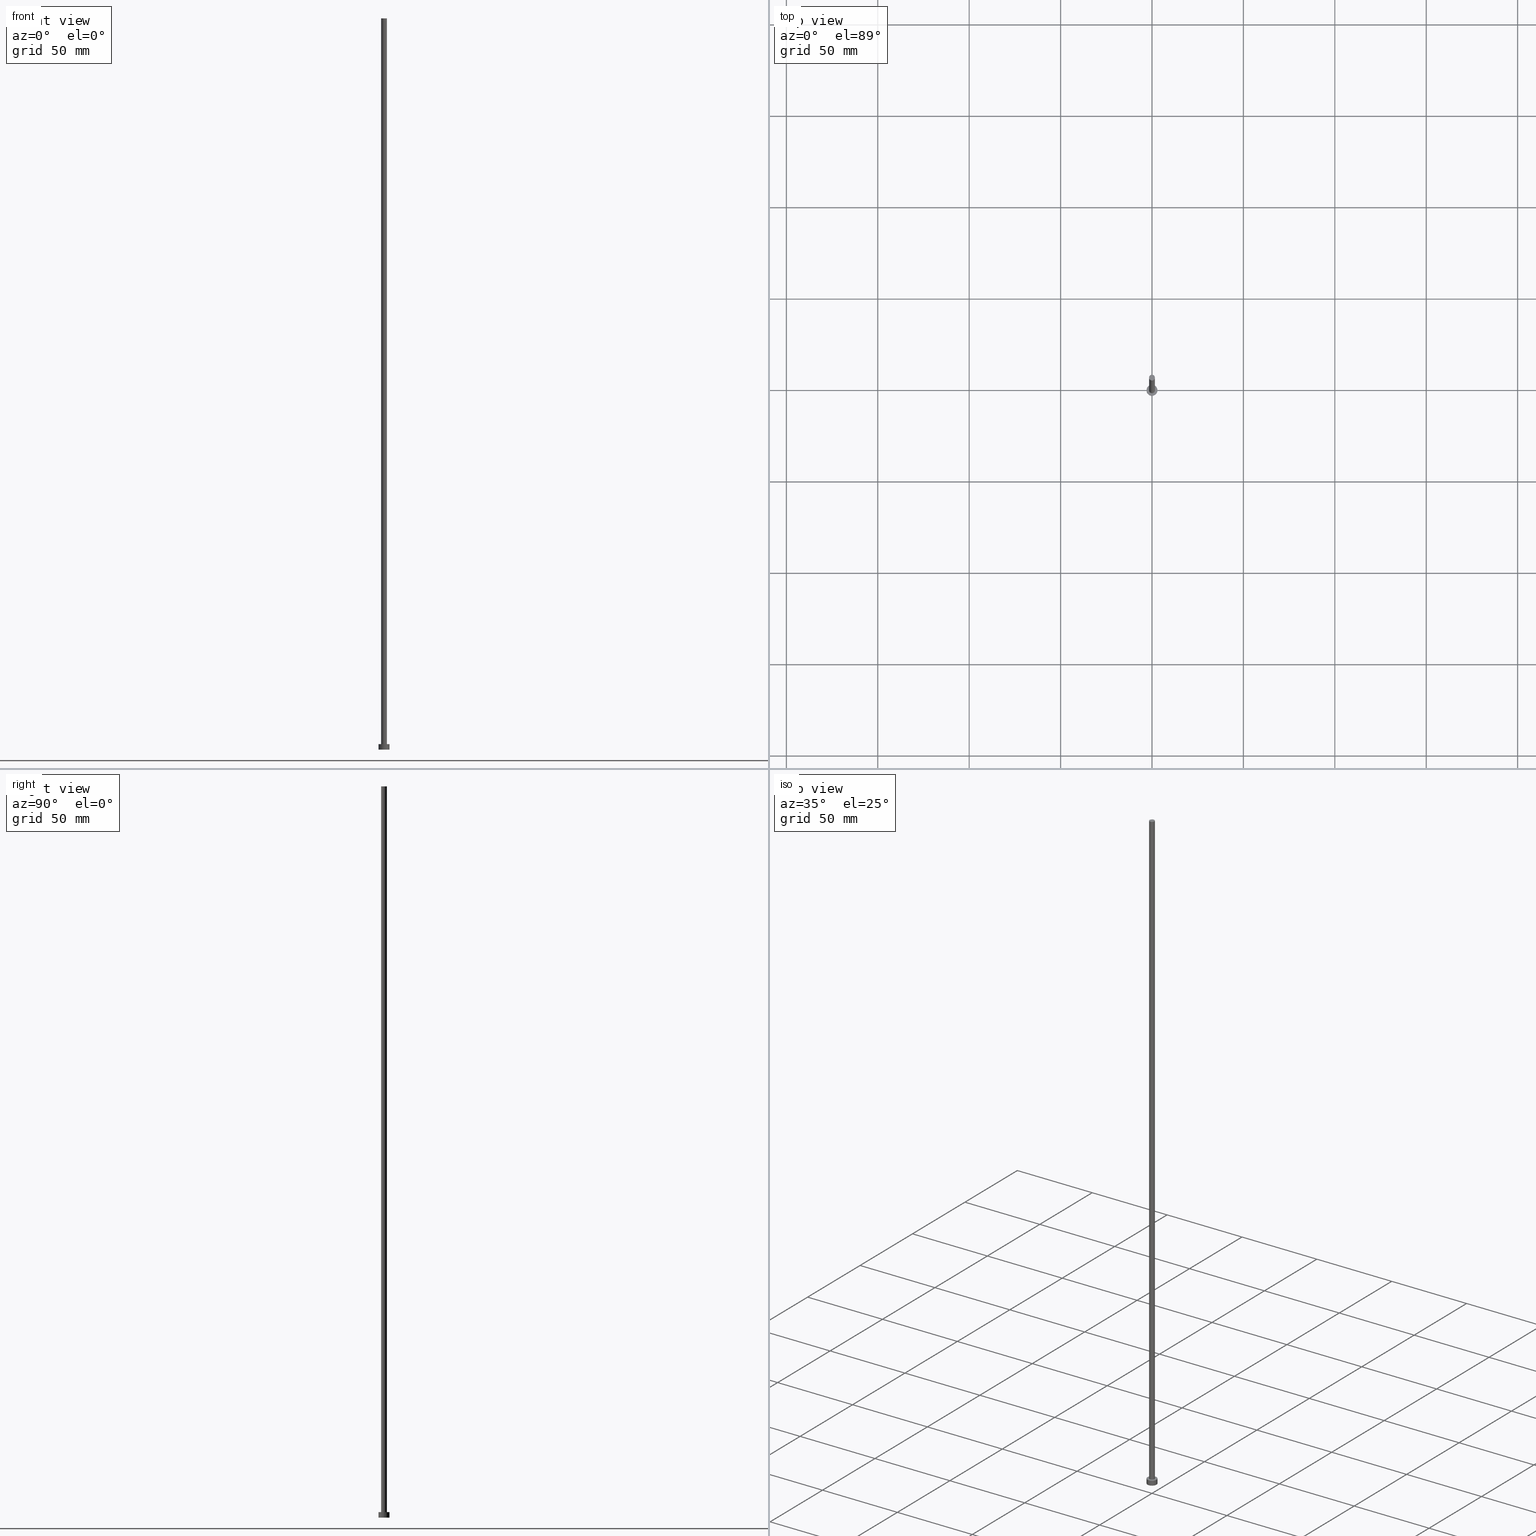
[diagram: canonical four-view strip — front | top / right | iso, engineering-drawing reading convention]
A machine part, canonical four-view strip (front | top / right | iso — engineering-drawing reading convention). The complete STEP part file that produces these views, byte-faithful:
ISO-10303-21;
HEADER;
FILE_DESCRIPTION (( 'STEP AP203' ),
    '1' );
FILE_NAME ('68ab.STEP',
    '2023-02-13T14:24:47',
    ( '' ),
    ( '' ),
    'SwSTEP 2.0',
    'SolidWorks 2019',
    '' );
FILE_SCHEMA (( 'CONFIG_CONTROL_DESIGN' ));
ENDSEC;

DATA;
#1 = ORIENTED_EDGE ( 'NONE', *, *, #150, .T. ) ;
#2 = PERSON_AND_ORGANIZATION_ROLE ( 'classification_officer' ) ;
#3 = DATE_AND_TIME ( #76, #146 ) ;
#4 =( GEOMETRIC_REPRESENTATION_CONTEXT ( 3 ) GLOBAL_UNCERTAINTY_ASSIGNED_CONTEXT ( ( #244 ) ) GLOBAL_UNIT_ASSIGNED_CONTEXT ( ( #196, #137, #120 ) ) REPRESENTATION_CONTEXT ( 'NONE', 'WORKASPACE' ) );
#5 = AXIS2_PLACEMENT_3D ( 'NONE', #152, #138, #219 ) ;
#6 = ORIENTED_EDGE ( 'NONE', *, *, #84, .F. ) ;
#7 = EDGE_LOOP ( 'NONE', ( #70, #195, #51, #205 ) ) ;
#8 = ORIENTED_EDGE ( 'NONE', *, *, #235, .T. ) ;
#9 = CARTESIAN_POINT ( 'NONE',  ( 0.000000000000000000, 0.000000000000000000, 3.000000000000000000 ) ) ;
#10 = EDGE_CURVE ( 'NONE', #237, #125, #223, .T. ) ;
#11 = ORIENTED_EDGE ( 'NONE', *, *, #150, .F. ) ;
#12 = DESIGN_CONTEXT ( 'detailed design', #78, 'design' ) ;
#13 = CIRCLE ( 'NONE', #153, 1.600000000000000089 ) ;
#14 = AXIS2_PLACEMENT_3D ( 'NONE', #203, #24, #104 ) ;
#15 = CC_DESIGN_PERSON_AND_ORGANIZATION_ASSIGNMENT ( #178, #245, ( #177 ) ) ;
#16 = PERSON_AND_ORGANIZATION ( #99, #111 ) ;
#17 = DIRECTION ( 'NONE',  ( 1.000000000000000000, 0.000000000000000000, 0.000000000000000000 ) ) ;
#18 = CALENDAR_DATE ( 2023, 13, 2 ) ;
#19 = AXIS2_PLACEMENT_3D ( 'NONE', #79, #118, #197 ) ;
#20 = CC_DESIGN_DATE_AND_TIME_ASSIGNMENT ( #94, #169, ( #177 ) ) ;
#21 = DIRECTION ( 'NONE',  ( 1.000000000000000000, 0.000000000000000000, 0.000000000000000000 ) ) ;
#22 = ORIENTED_EDGE ( 'NONE', *, *, #10, .F. ) ;
#23 = VERTEX_POINT ( 'NONE', #109 ) ;
#24 = DIRECTION ( 'NONE',  ( 0.000000000000000000, 0.000000000000000000, 1.000000000000000000 ) ) ;
#25 = CC_DESIGN_APPROVAL ( #80, ( #177 ) ) ;
#26 = CARTESIAN_POINT ( 'NONE',  ( 0.000000000000000000, 0.000000000000000000, 400.0000000000000000 ) ) ;
#27 = DIRECTION ( 'NONE',  ( 1.000000000000000000, 0.000000000000000000, 0.000000000000000000 ) ) ;
#28 = COORDINATED_UNIVERSAL_TIME_OFFSET ( 1, 0, .AHEAD. ) ;
#29 = ADVANCED_FACE ( 'NONE', ( #128 ), #105, .T. ) ;
#30 = ORIENTED_EDGE ( 'NONE', *, *, #38, .F. ) ;
#31 = EDGE_LOOP ( 'NONE', ( #81, #154, #155, #30 ) ) ;
#32 = DIRECTION ( 'NONE',  ( 1.000000000000000000, 0.000000000000000000, 0.000000000000000000 ) ) ;
#33 = VERTEX_POINT ( 'NONE', #127 ) ;
#34 = PERSON_AND_ORGANIZATION ( #99, #111 ) ;
#35 = DIRECTION ( 'NONE',  ( -0.000000000000000000, -0.000000000000000000, -1.000000000000000000 ) ) ;
#36 = APPROVAL_STATUS ( 'not_yet_approved' ) ;
#37 = CIRCLE ( 'NONE', #225, 3.000000000000000444 ) ;
#38 = EDGE_CURVE ( 'NONE', #139, #237, #71, .T. ) ;
#39 = CARTESIAN_POINT ( 'NONE',  ( -1.600000000000000089, 0.000000000000000000, 3.000000000000000000 ) ) ;
#40 = LOCAL_TIME ( 15, 24, 47.00000000000000000, #165 ) ;
#41 = CARTESIAN_POINT ( 'NONE',  ( -3.000000000000000444, 0.000000000000000000, 3.000000000000000000 ) ) ;
#42 = ORIENTED_EDGE ( 'NONE', *, *, #123, .F. ) ;
#43 = PLANE ( 'NONE',  #176 ) ;
#44 = VECTOR ( 'NONE', #77, 1000.000000000000000 ) ;
#45 = DIRECTION ( 'NONE',  ( 0.000000000000000000, 0.000000000000000000, 1.000000000000000000 ) ) ;
#46 = AXIS2_PLACEMENT_3D ( 'NONE', #222, #45, #182 ) ;
#47 = EDGE_LOOP ( 'NONE', ( #11, #59, #148, #119 ) ) ;
#48 = APPROVAL_STATUS ( 'not_yet_approved' ) ;
#49 = PLANE ( 'NONE',  #185 ) ;
#50 = DIRECTION ( 'NONE',  ( -1.000000000000000000, 0.000000000000000000, 0.000000000000000000 ) ) ;
#51 = ORIENTED_EDGE ( 'NONE', *, *, #38, .T. ) ;
#52 = DIRECTION ( 'NONE',  ( 0.000000000000000000, 0.000000000000000000, 1.000000000000000000 ) ) ;
#53 = APPROVAL_STATUS ( 'not_yet_approved' ) ;
#54 = CYLINDRICAL_SURFACE ( 'NONE', #158, 3.000000000000000444 ) ;
#55 = DIRECTION ( 'NONE',  ( -0.000000000000000000, -0.000000000000000000, -1.000000000000000000 ) ) ;
#56 = AXIS2_PLACEMENT_3D ( 'NONE', #240, #224, #50 ) ;
#57 = APPROVAL_DATE_TIME ( #248, #112 ) ;
#58 = ADVANCED_FACE ( 'NONE', ( #64 ), #43, .T. ) ;
#59 = ORIENTED_EDGE ( 'NONE', *, *, #235, .F. ) ;
#60 = SHAPE_DEFINITION_REPRESENTATION ( #170, #221 ) ;
#61 = VERTEX_POINT ( 'NONE', #96 ) ;
#62 = SECURITY_CLASSIFICATION_LEVEL ( 'unclassified' ) ;
#63 = EDGE_CURVE ( 'NONE', #136, #125, #130, .T. ) ;
#64 = FACE_OUTER_BOUND ( 'NONE', #190, .T. ) ;
#65 = CC_DESIGN_PERSON_AND_ORGANIZATION_ASSIGNMENT ( #183, #164, ( #253 ) ) ;
#66 = APPROVAL_ROLE ( '' ) ;
#67 = CC_DESIGN_SECURITY_CLASSIFICATION ( #88, ( #171 ) ) ;
#68 = FACE_OUTER_BOUND ( 'NONE', #122, .T. ) ;
#69 = DIRECTION ( 'NONE',  ( 1.000000000000000000, 0.000000000000000000, -0.000000000000000000 ) ) ;
#70 = ORIENTED_EDGE ( 'NONE', *, *, #63, .F. ) ;
#71 = LINE ( 'NONE', #232, #83 ) ;
#72 = CC_DESIGN_APPROVAL ( #238, ( #171 ) ) ;
#73 = DIRECTION ( 'NONE',  ( -0.000000000000000000, -0.000000000000000000, -1.000000000000000000 ) ) ;
#74 = LOCAL_TIME ( 15, 24, 47.00000000000000000, #234 ) ;
#75 = PERSON_AND_ORGANIZATION_ROLE ( 'creator' ) ;
#76 = CALENDAR_DATE ( 2023, 13, 2 ) ;
#77 = DIRECTION ( 'NONE',  ( -0.000000000000000000, -0.000000000000000000, -1.000000000000000000 ) ) ;
#78 = APPLICATION_CONTEXT ( 'configuration controlled 3d designs of mechanical parts and assemblies' ) ;
#79 = CARTESIAN_POINT ( 'NONE',  ( 0.000000000000000000, 0.000000000000000000, 0.000000000000000000 ) ) ;
#80 = APPROVAL ( #36, 'NEUR�EN�' ) ;
#81 = ORIENTED_EDGE ( 'NONE', *, *, #189, .F. ) ;
#82 = APPLICATION_CONTEXT ( 'configuration controlled 3d designs of mechanical parts and assemblies' ) ;
#83 = VECTOR ( 'NONE', #35, 1000.000000000000000 ) ;
#84 = EDGE_CURVE ( 'NONE', #23, #33, #93, .T. ) ;
#85 = CARTESIAN_POINT ( 'NONE',  ( 0.000000000000000000, 0.000000000000000000, 3.000000000000000000 ) ) ;
#86 = AXIS2_PLACEMENT_3D ( 'NONE', #131, #216, #21 ) ;
#87 = CARTESIAN_POINT ( 'NONE',  ( 0.000000000000000000, 0.000000000000000000, 3.000000000000000000 ) ) ;
#88 = SECURITY_CLASSIFICATION ( '', '', #62 ) ;
#89 = DIRECTION ( 'NONE',  ( -1.000000000000000000, 0.000000000000000000, 0.000000000000000000 ) ) ;
#90 = APPLICATION_PROTOCOL_DEFINITION ( 'international standard', 'config_control_design', 1994, #78 ) ;
#91 = FACE_BOUND ( 'NONE', #194, .T. ) ;
#92 = PRODUCT_RELATED_PRODUCT_CATEGORY ( 'detail', '', ( #253 ) ) ;
#93 = CIRCLE ( 'NONE', #241, 3.000000000000000444 ) ;
#94 = DATE_AND_TIME ( #142, #40 ) ;
#95 = LINE ( 'NONE', #151, #162 ) ;
#96 = CARTESIAN_POINT ( 'NONE',  ( -3.000000000000000444, 0.000000000000000000, 0.000000000000000000 ) ) ;
#97 = EDGE_CURVE ( 'NONE', #61, #236, #121, .T. ) ;
#98 = CARTESIAN_POINT ( 'NONE',  ( 0.000000000000000000, 0.000000000000000000, 0.000000000000000000 ) ) ;
#99 = PERSON ( 'NEUR�EN�', 'NEUR�EN�', 'NEUR�EN�', ('NEUR�EN�'), ('NEUR�EN�'), ('NEUR�EN�') ) ;
#100 = CARTESIAN_POINT ( 'NONE',  ( 1.600000000000000089, 1.959434878635765230E-16, 3.000000000000000000 ) ) ;
#101 = DIRECTION ( 'NONE',  ( 0.000000000000000000, 0.000000000000000000, 1.000000000000000000 ) ) ;
#102 = AXIS2_PLACEMENT_3D ( 'NONE', #239, #186, #89 ) ;
#103 = APPROVAL_PERSON_ORGANIZATION ( #181, #112, #66 ) ;
#104 = DIRECTION ( 'NONE',  ( 1.000000000000000000, 0.000000000000000000, 0.000000000000000000 ) ) ;
#105 = CYLINDRICAL_SURFACE ( 'NONE', #102, 1.600000000000000089 ) ;
#106 = DIRECTION ( 'NONE',  ( 1.000000000000000000, 0.000000000000000000, -0.000000000000000000 ) ) ;
#107 = DIRECTION ( 'NONE',  ( -1.000000000000000000, 0.000000000000000000, 0.000000000000000000 ) ) ;
#108 = DIRECTION ( 'NONE',  ( 1.000000000000000000, 0.000000000000000000, 0.000000000000000000 ) ) ;
#109 = CARTESIAN_POINT ( 'NONE',  ( 3.000000000000000444, 3.673940397442060361E-16, 3.000000000000000000 ) ) ;
#110 = AXIS2_PLACEMENT_3D ( 'NONE', #87, #52, #108 ) ;
#111 = ORGANIZATION ( 'NEUR�EN�', 'NEUR�EN�', '' ) ;
#112 = APPROVAL ( #48, 'NEUR�EN�' ) ;
#113 = DIRECTION ( 'NONE',  ( 0.000000000000000000, 0.000000000000000000, 1.000000000000000000 ) ) ;
#114 = CALENDAR_DATE ( 2023, 13, 2 ) ;
#115 = ORIENTED_EDGE ( 'NONE', *, *, #227, .T. ) ;
#116 = ADVANCED_FACE ( 'NONE', ( #91, #68 ), #188, .T. ) ;
#117 = APPLICATION_PROTOCOL_DEFINITION ( 'international standard', 'config_control_design', 1994, #82 ) ;
#118 = DIRECTION ( 'NONE',  ( 0.000000000000000000, 0.000000000000000000, 1.000000000000000000 ) ) ;
#119 = ORIENTED_EDGE ( 'NONE', *, *, #97, .T. ) ;
#120 =( NAMED_UNIT ( * ) SI_UNIT ( $, .STERADIAN. ) SOLID_ANGLE_UNIT ( ) );
#121 = CIRCLE ( 'NONE', #144, 3.000000000000000444 ) ;
#122 = EDGE_LOOP ( 'NONE', ( #8, #202 ) ) ;
#123 = EDGE_CURVE ( 'NONE', #125, #237, #13, .T. ) ;
#124 = APPROVAL_DATE_TIME ( #3, #80 ) ;
#125 = VERTEX_POINT ( 'NONE', #100 ) ;
#126 = ORIENTED_EDGE ( 'NONE', *, *, #97, .F. ) ;
#127 = CARTESIAN_POINT ( 'NONE',  ( -3.000000000000000444, 0.000000000000000000, 3.000000000000000000 ) ) ;
#128 = FACE_OUTER_BOUND ( 'NONE', #31, .T. ) ;
#129 = APPROVAL_ROLE ( '' ) ;
#130 = LINE ( 'NONE', #168, #228 ) ;
#131 = CARTESIAN_POINT ( 'NONE',  ( 0.000000000000000000, 0.000000000000000000, 0.000000000000000000 ) ) ;
#132 = CC_DESIGN_DATE_AND_TIME_ASSIGNMENT ( #134, #172, ( #88 ) ) ;
#133 = ORIENTED_EDGE ( 'NONE', *, *, #156, .F. ) ;
#134 = DATE_AND_TIME ( #114, #217 ) ;
#135 = CC_DESIGN_APPROVAL ( #112, ( #88 ) ) ;
#136 = VERTEX_POINT ( 'NONE', #233 ) ;
#137 =( NAMED_UNIT ( * ) PLANE_ANGLE_UNIT ( ) SI_UNIT ( $, .RADIAN. ) );
#138 = DIRECTION ( 'NONE',  ( -0.000000000000000000, -0.000000000000000000, -1.000000000000000000 ) ) ;
#139 = VERTEX_POINT ( 'NONE', #254 ) ;
#140 = PERSON_AND_ORGANIZATION ( #99, #111 ) ;
#141 = DIRECTION ( 'NONE',  ( 0.000000000000000000, 0.000000000000000000, 1.000000000000000000 ) ) ;
#142 = CALENDAR_DATE ( 2023, 13, 2 ) ;
#143 = EDGE_CURVE ( 'NONE', #33, #61, #218, .T. ) ;
#144 = AXIS2_PLACEMENT_3D ( 'NONE', #98, #101, #210 ) ;
#145 = EDGE_LOOP ( 'NONE', ( #6, #1, #174, #246 ) ) ;
#146 = LOCAL_TIME ( 15, 24, 47.00000000000000000, #249 ) ;
#147 = CIRCLE ( 'NONE', #46, 1.600000000000000089 ) ;
#148 = ORIENTED_EDGE ( 'NONE', *, *, #143, .T. ) ;
#149 = DIRECTION ( 'NONE',  ( 0.000000000000000000, 0.000000000000000000, 1.000000000000000000 ) ) ;
#150 = EDGE_CURVE ( 'NONE', #23, #236, #95, .T. ) ;
#151 = CARTESIAN_POINT ( 'NONE',  ( 3.000000000000000444, 3.673940397442060361E-16, 3.000000000000000000 ) ) ;
#152 = CARTESIAN_POINT ( 'NONE',  ( 0.000000000000000000, 0.000000000000000000, 3.000000000000000000 ) ) ;
#153 = AXIS2_PLACEMENT_3D ( 'NONE', #9, #229, #32 ) ;
#154 = ORIENTED_EDGE ( 'NONE', *, *, #63, .T. ) ;
#155 = ORIENTED_EDGE ( 'NONE', *, *, #123, .T. ) ;
#156 = EDGE_CURVE ( 'NONE', #236, #61, #199, .T. ) ;
#157 = COORDINATED_UNIVERSAL_TIME_OFFSET ( 1, 0, .AHEAD. ) ;
#158 = AXIS2_PLACEMENT_3D ( 'NONE', #211, #73, #107 ) ;
#159 = CYLINDRICAL_SURFACE ( 'NONE', #56, 1.600000000000000089 ) ;
#160 = ADVANCED_FACE ( 'NONE', ( #166 ), #54, .T. ) ;
#161 = MECHANICAL_CONTEXT ( 'NONE', #82, 'mechanical' ) ;
#162 = VECTOR ( 'NONE', #250, 1000.000000000000000 ) ;
#163 = CARTESIAN_POINT ( 'NONE',  ( 3.000000000000000444, 3.673940397442060361E-16, 0.000000000000000000 ) ) ;
#164 = PERSON_AND_ORGANIZATION_ROLE ( 'design_owner' ) ;
#165 = COORDINATED_UNIVERSAL_TIME_OFFSET ( 1, 0, .AHEAD. ) ;
#166 = FACE_OUTER_BOUND ( 'NONE', #145, .T. ) ;
#167 = CC_DESIGN_PERSON_AND_ORGANIZATION_ASSIGNMENT ( #140, #175, ( #171 ) ) ;
#168 = CARTESIAN_POINT ( 'NONE',  ( 1.600000000000000089, 1.959434878635765230E-16, 400.0000000000000000 ) ) ;
#169 = DATE_TIME_ROLE ( 'creation_date' ) ;
#170 = PRODUCT_DEFINITION_SHAPE ( 'NONE', 'NONE',  #177 ) ;
#171 = PRODUCT_DEFINITION_FORMATION_WITH_SPECIFIED_SOURCE ( 'LIBOVOLN�', '', #253, .NOT_KNOWN. ) ;
#172 = DATE_TIME_ROLE ( 'classification_date' ) ;
#173 = FACE_OUTER_BOUND ( 'NONE', #47, .T. ) ;
#174 = ORIENTED_EDGE ( 'NONE', *, *, #156, .T. ) ;
#175 = PERSON_AND_ORGANIZATION_ROLE ( 'design_supplier' ) ;
#176 = AXIS2_PLACEMENT_3D ( 'NONE', #26, #149, #251 ) ;
#177 = PRODUCT_DEFINITION ( 'NEZN�M�', '', #171, #12 ) ;
#178 = PERSON_AND_ORGANIZATION ( #99, #111 ) ;
#179 = APPROVAL_PERSON_ORGANIZATION ( #247, #238, #129 ) ;
#180 = DIRECTION ( 'NONE',  ( 0.000000000000000000, 0.000000000000000000, 1.000000000000000000 ) ) ;
#181 = PERSON_AND_ORGANIZATION ( #99, #111 ) ;
#182 = DIRECTION ( 'NONE',  ( 1.000000000000000000, 0.000000000000000000, 0.000000000000000000 ) ) ;
#183 = PERSON_AND_ORGANIZATION ( #99, #111 ) ;
#184 = ADVANCED_FACE ( 'NONE', ( #173 ), #201, .T. ) ;
#185 = AXIS2_PLACEMENT_3D ( 'NONE', #207, #141, #106 ) ;
#186 = DIRECTION ( 'NONE',  ( -0.000000000000000000, -0.000000000000000000, -1.000000000000000000 ) ) ;
#187 = FACE_OUTER_BOUND ( 'NONE', #209, .T. ) ;
#188 = PLANE ( 'NONE',  #214 ) ;
#189 = EDGE_CURVE ( 'NONE', #136, #139, #231, .T. ) ;
#190 = EDGE_LOOP ( 'NONE', ( #115, #255 ) ) ;
#191 = APPROVAL_ROLE ( '' ) ;
#192 = DATE_AND_TIME ( #212, #74 ) ;
#193 = CC_DESIGN_PERSON_AND_ORGANIZATION_ASSIGNMENT ( #16, #75, ( #171 ) ) ;
#194 = EDGE_LOOP ( 'NONE', ( #22, #42 ) ) ;
#195 = ORIENTED_EDGE ( 'NONE', *, *, #227, .F. ) ;
#196 =( LENGTH_UNIT ( ) NAMED_UNIT ( * ) SI_UNIT ( .MILLI., .METRE. ) );
#197 = DIRECTION ( 'NONE',  ( 1.000000000000000000, 0.000000000000000000, 0.000000000000000000 ) ) ;
#198 = ADVANCED_FACE ( 'NONE', ( #187 ), #49, .F. ) ;
#199 = CIRCLE ( 'NONE', #86, 3.000000000000000444 ) ;
#200 = APPROVAL_PERSON_ORGANIZATION ( #34, #80, #191 ) ;
#201 = CYLINDRICAL_SURFACE ( 'NONE', #5, 3.000000000000000444 ) ;
#202 = ORIENTED_EDGE ( 'NONE', *, *, #84, .T. ) ;
#203 = CARTESIAN_POINT ( 'NONE',  ( 0.000000000000000000, 0.000000000000000000, 400.0000000000000000 ) ) ;
#204 = MANIFOLD_SOLID_BREP ( 'P�idat vysunut�m3', #220 ) ;
#205 = ORIENTED_EDGE ( 'NONE', *, *, #10, .T. ) ;
#206 = CARTESIAN_POINT ( 'NONE',  ( 0.000000000000000000, 0.000000000000000000, 3.000000000000000000 ) ) ;
#207 = CARTESIAN_POINT ( 'NONE',  ( 0.000000000000000000, 0.000000000000000000, 0.000000000000000000 ) ) ;
#208 = ADVANCED_FACE ( 'NONE', ( #242 ), #159, .T. ) ;
#209 = EDGE_LOOP ( 'NONE', ( #126, #133 ) ) ;
#210 = DIRECTION ( 'NONE',  ( 1.000000000000000000, 0.000000000000000000, 0.000000000000000000 ) ) ;
#211 = CARTESIAN_POINT ( 'NONE',  ( 0.000000000000000000, 0.000000000000000000, 3.000000000000000000 ) ) ;
#212 = CALENDAR_DATE ( 2023, 13, 2 ) ;
#213 = CARTESIAN_POINT ( 'NONE',  ( 0.000000000000000000, 0.000000000000000000, 3.000000000000000000 ) ) ;
#214 = AXIS2_PLACEMENT_3D ( 'NONE', #85, #226, #69 ) ;
#215 = PERSON_AND_ORGANIZATION ( #99, #111 ) ;
#216 = DIRECTION ( 'NONE',  ( 0.000000000000000000, 0.000000000000000000, 1.000000000000000000 ) ) ;
#217 = LOCAL_TIME ( 15, 24, 47.00000000000000000, #157 ) ;
#218 = LINE ( 'NONE', #41, #44 ) ;
#219 = DIRECTION ( 'NONE',  ( -1.000000000000000000, 0.000000000000000000, 0.000000000000000000 ) ) ;
#220 = CLOSED_SHELL ( 'NONE', ( #29, #160, #184, #116, #198, #208, #58 ) ) ;
#221 = ADVANCED_BREP_SHAPE_REPRESENTATION ( '68ab', ( #204, #19 ), #4 ) ;
#222 = CARTESIAN_POINT ( 'NONE',  ( 0.000000000000000000, 0.000000000000000000, 400.0000000000000000 ) ) ;
#223 = CIRCLE ( 'NONE', #110, 1.600000000000000089 ) ;
#224 = DIRECTION ( 'NONE',  ( -0.000000000000000000, -0.000000000000000000, -1.000000000000000000 ) ) ;
#225 = AXIS2_PLACEMENT_3D ( 'NONE', #206, #180, #27 ) ;
#226 = DIRECTION ( 'NONE',  ( 0.000000000000000000, 0.000000000000000000, 1.000000000000000000 ) ) ;
#227 = EDGE_CURVE ( 'NONE', #139, #136, #147, .T. ) ;
#228 = VECTOR ( 'NONE', #55, 1000.000000000000000 ) ;
#229 = DIRECTION ( 'NONE',  ( 0.000000000000000000, 0.000000000000000000, 1.000000000000000000 ) ) ;
#230 = CC_DESIGN_PERSON_AND_ORGANIZATION_ASSIGNMENT ( #215, #2, ( #88 ) ) ;
#231 = CIRCLE ( 'NONE', #14, 1.600000000000000089 ) ;
#232 = CARTESIAN_POINT ( 'NONE',  ( -1.600000000000000089, 0.000000000000000000, 400.0000000000000000 ) ) ;
#233 = CARTESIAN_POINT ( 'NONE',  ( 1.600000000000000089, 1.959434878635765230E-16, 400.0000000000000000 ) ) ;
#234 = COORDINATED_UNIVERSAL_TIME_OFFSET ( 1, 0, .AHEAD. ) ;
#235 = EDGE_CURVE ( 'NONE', #33, #23, #37, .T. ) ;
#236 = VERTEX_POINT ( 'NONE', #163 ) ;
#237 = VERTEX_POINT ( 'NONE', #39 ) ;
#238 = APPROVAL ( #53, 'NEUR�EN�' ) ;
#239 = CARTESIAN_POINT ( 'NONE',  ( 0.000000000000000000, 0.000000000000000000, 400.0000000000000000 ) ) ;
#240 = CARTESIAN_POINT ( 'NONE',  ( 0.000000000000000000, 0.000000000000000000, 400.0000000000000000 ) ) ;
#241 = AXIS2_PLACEMENT_3D ( 'NONE', #213, #113, #17 ) ;
#242 = FACE_OUTER_BOUND ( 'NONE', #7, .T. ) ;
#243 = LOCAL_TIME ( 15, 24, 47.00000000000000000, #28 ) ;
#244 = UNCERTAINTY_MEASURE_WITH_UNIT (LENGTH_MEASURE( 1.000000000000000082E-05 ), #196, 'distance_accuracy_value', 'NONE');
#245 = PERSON_AND_ORGANIZATION_ROLE ( 'creator' ) ;
#246 = ORIENTED_EDGE ( 'NONE', *, *, #143, .F. ) ;
#247 = PERSON_AND_ORGANIZATION ( #99, #111 ) ;
#248 = DATE_AND_TIME ( #18, #243 ) ;
#249 = COORDINATED_UNIVERSAL_TIME_OFFSET ( 1, 0, .AHEAD. ) ;
#250 = DIRECTION ( 'NONE',  ( -0.000000000000000000, -0.000000000000000000, -1.000000000000000000 ) ) ;
#251 = DIRECTION ( 'NONE',  ( 1.000000000000000000, 0.000000000000000000, -0.000000000000000000 ) ) ;
#252 = APPROVAL_DATE_TIME ( #192, #238 ) ;
#253 = PRODUCT ( '68ab', '68ab', '', ( #161 ) ) ;
#254 = CARTESIAN_POINT ( 'NONE',  ( -1.600000000000000089, 0.000000000000000000, 400.0000000000000000 ) ) ;
#255 = ORIENTED_EDGE ( 'NONE', *, *, #189, .T. ) ;
ENDSEC;
END-ISO-10303-21;
